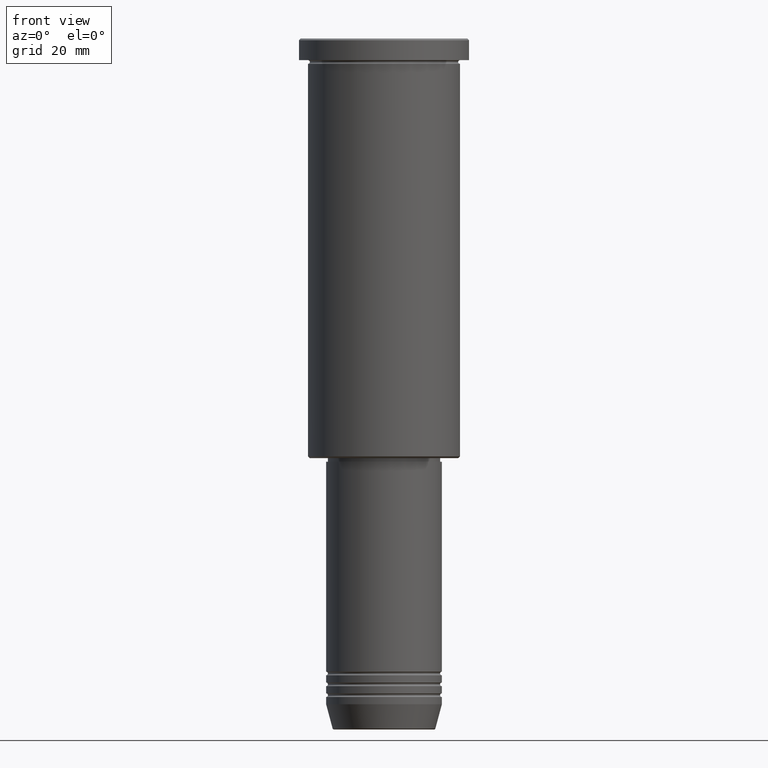
[diagram: clean part render]
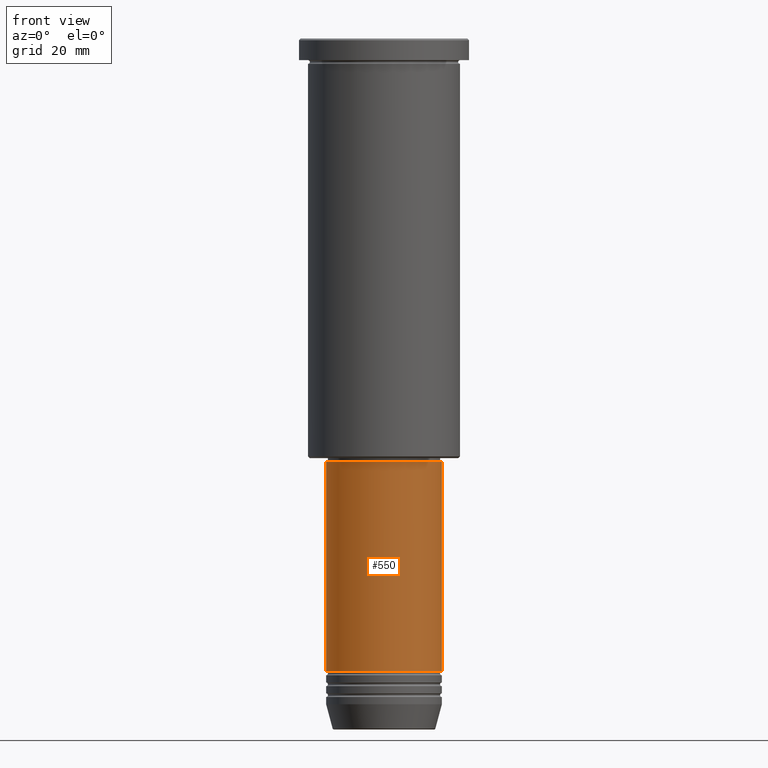
[diagram: same view with one face highlighted and labeled with its STEP entity id]
A machine part, front view. The second image highlights one B-rep face of the part: STEP entity #550.
In plain terms, the highlighted cylindrical surface (partial cylindrical patch) has radius 16 mm, axis along (-0, -0, 1).
Its self-contained STEP definition (entity closure, byte-faithful):
#16 = CARTESIAN_POINT ( 'NONE',  ( 16.00000000000000000, 0.000000000000000000, -117.0000000000000142 ) ) ;
#20 = VERTEX_POINT ( 'NONE', #16 ) ;
#64 = VERTEX_POINT ( 'NONE', #950 ) ;
#91 = CARTESIAN_POINT ( 'NONE',  ( -16.00000000000000000, 1.959434878635765131E-15, 0.000000000000000000 ) ) ;
#92 = ORIENTED_EDGE ( 'NONE', *, *, #656, .T. ) ;
#130 = VERTEX_POINT ( 'NONE', #137 ) ;
#137 = CARTESIAN_POINT ( 'NONE',  ( -16.00000000000000000, 1.959434878635765131E-15, -175.0000000000000000 ) ) ;
#203 = DIRECTION ( 'NONE',  ( 1.000000000000000000, 0.000000000000000000, 0.000000000000000000 ) ) ;
#221 = DIRECTION ( 'NONE',  ( -0.000000000000000000, -0.000000000000000000, 1.000000000000000000 ) ) ;
#258 = LINE ( 'NONE', #91, #750 ) ;
#291 = AXIS2_PLACEMENT_3D ( 'NONE', #1075, #798, #983 ) ;
#292 = ORIENTED_EDGE ( 'NONE', *, *, #860, .F. ) ;
#308 = EDGE_LOOP ( 'NONE', ( #453, #92, #839, #292 ) ) ;
#312 = EDGE_CURVE ( 'NONE', #130, #910, #258, .T. ) ;
#349 = DIRECTION ( 'NONE',  ( -0.000000000000000000, -0.000000000000000000, 1.000000000000000000 ) ) ;
#453 = ORIENTED_EDGE ( 'NONE', *, *, #312, .F. ) ;
#492 = DIRECTION ( 'NONE',  ( 1.000000000000000000, 0.000000000000000000, 0.000000000000000000 ) ) ;
#550 = ADVANCED_FACE ( 'NONE', ( #1121 ), #667, .T. ) ;
#554 = CIRCLE ( 'NONE', #774, 16.00000000000000000 ) ;
#568 = DIRECTION ( 'NONE',  ( -0.000000000000000000, -0.000000000000000000, 1.000000000000000000 ) ) ;
#575 = DIRECTION ( 'NONE',  ( -0.000000000000000000, -0.000000000000000000, 1.000000000000000000 ) ) ;
#656 = EDGE_CURVE ( 'NONE', #130, #64, #554, .T. ) ;
#667 = CYLINDRICAL_SURFACE ( 'NONE', #1035, 16.00000000000000000 ) ;
#673 = CIRCLE ( 'NONE', #291, 16.00000000000000000 ) ;
#750 = VECTOR ( 'NONE', #349, 1000.000000000000000 ) ;
#774 = AXIS2_PLACEMENT_3D ( 'NONE', #1017, #568, #203 ) ;
#798 = DIRECTION ( 'NONE',  ( -0.000000000000000000, -0.000000000000000000, 1.000000000000000000 ) ) ;
#839 = ORIENTED_EDGE ( 'NONE', *, *, #1074, .T. ) ;
#860 = EDGE_CURVE ( 'NONE', #910, #20, #673, .T. ) ;
#898 = CARTESIAN_POINT ( 'NONE',  ( -16.00000000000000000, 1.959434878635765131E-15, -117.0000000000000142 ) ) ;
#910 = VERTEX_POINT ( 'NONE', #898 ) ;
#950 = CARTESIAN_POINT ( 'NONE',  ( 16.00000000000000000, 0.000000000000000000, -175.0000000000000000 ) ) ;
#980 = VECTOR ( 'NONE', #575, 1000.000000000000000 ) ;
#983 = DIRECTION ( 'NONE',  ( 1.000000000000000000, 0.000000000000000000, 0.000000000000000000 ) ) ;
#1017 = CARTESIAN_POINT ( 'NONE',  ( 0.000000000000000000, 0.000000000000000000, -175.0000000000000000 ) ) ;
#1035 = AXIS2_PLACEMENT_3D ( 'NONE', #1036, #221, #492 ) ;
#1036 = CARTESIAN_POINT ( 'NONE',  ( 0.000000000000000000, 0.000000000000000000, 0.000000000000000000 ) ) ;
#1044 = LINE ( 'NONE', #1122, #980 ) ;
#1074 = EDGE_CURVE ( 'NONE', #64, #20, #1044, .T. ) ;
#1075 = CARTESIAN_POINT ( 'NONE',  ( 0.000000000000000000, 0.000000000000000000, -117.0000000000000142 ) ) ;
#1121 = FACE_OUTER_BOUND ( 'NONE', #308, .T. ) ;
#1122 = CARTESIAN_POINT ( 'NONE',  ( 16.00000000000000000, 0.000000000000000000, 0.000000000000000000 ) ) ;